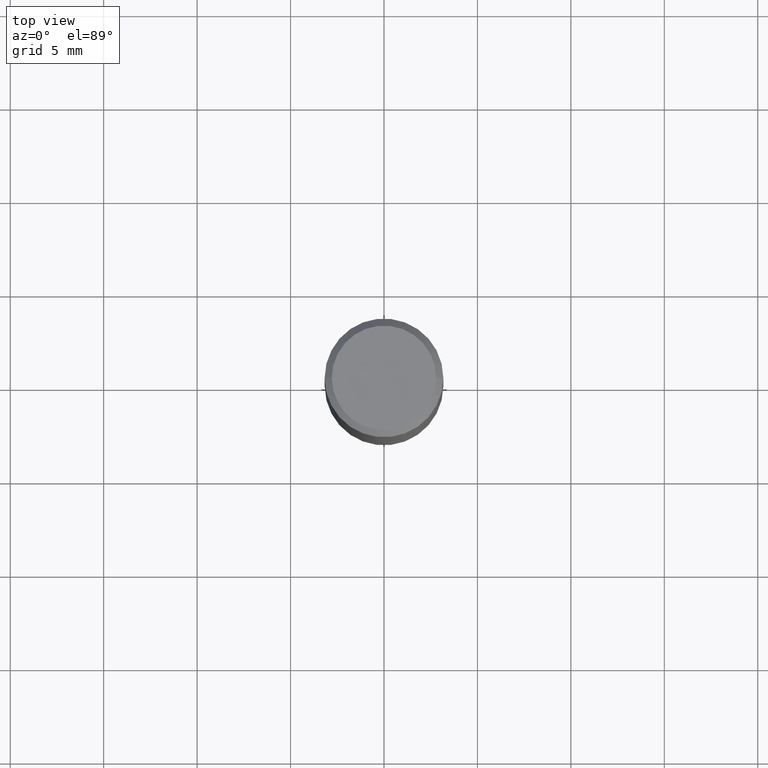
[diagram: clean part render]
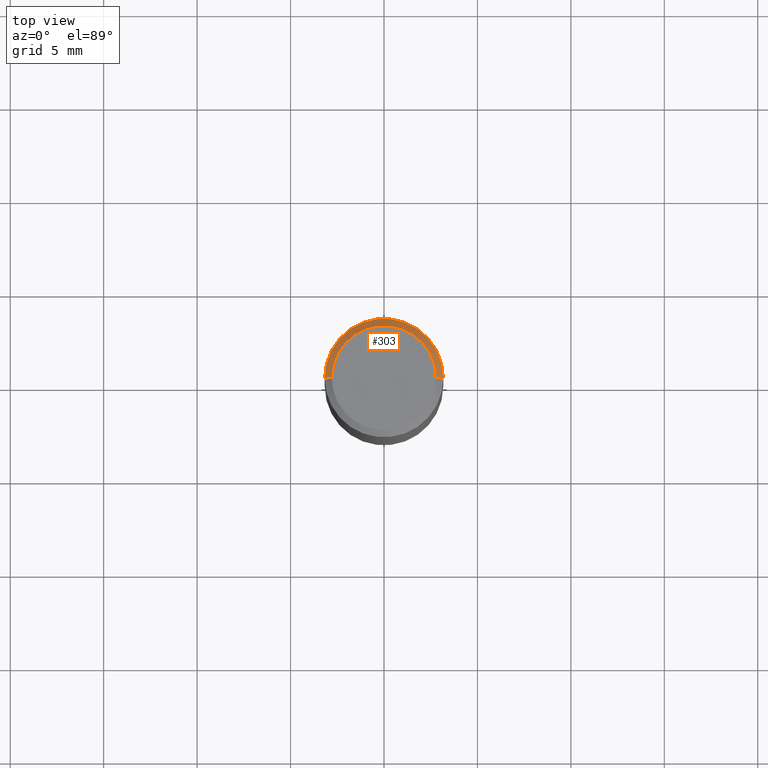
[diagram: same view with one face highlighted and labeled with its STEP entity id]
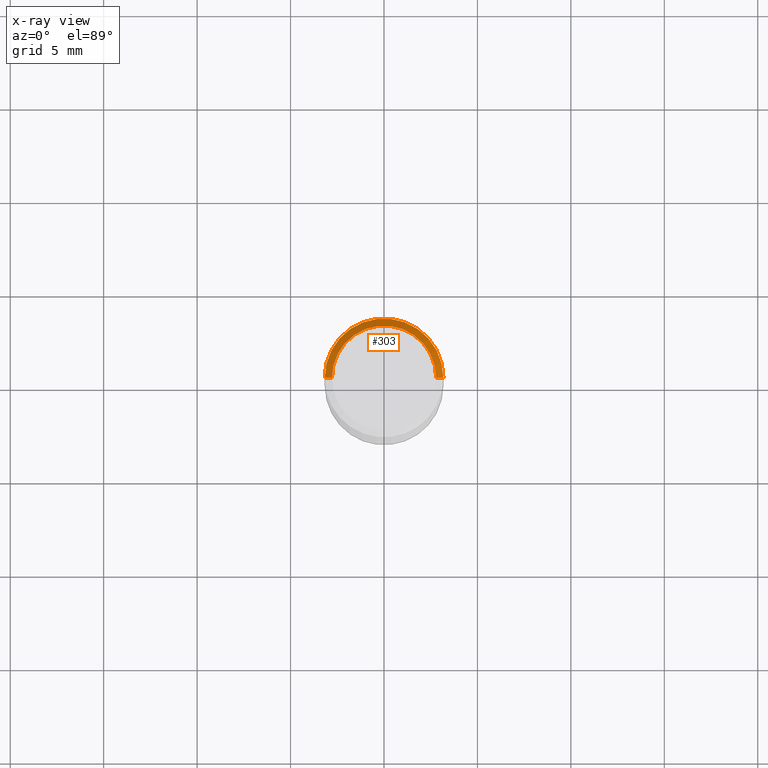
[diagram: x-ray of the same camera — body ghosted, the highlighted face saturated]
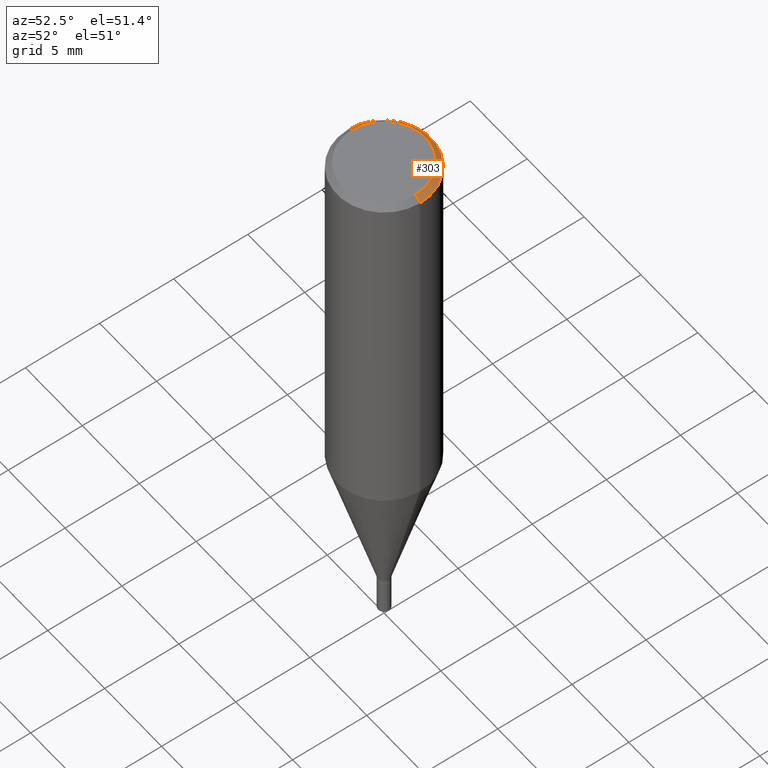
[diagram: same view with one face highlighted and labeled with its STEP entity id]
A machine part, top view. The second image highlights one B-rep face of the part: STEP entity #303.
The next image is the same camera in x-ray: the body ghosted, the highlighted face saturated — about 0% of this face is hidden behind the body in this view.
A second angle (auxiliary view) of the same face is appended — the face is thin or edge-on in the first view.
In plain terms, the highlighted conical surface has half-angle 45 deg.
Its self-contained STEP definition (entity closure, byte-faithful):
#22 = CONICAL_SURFACE ( 'NONE', #79, 0.1250000000000000000, 0.7853981633974442822 ) ;
#24 = DIRECTION ( 'NONE',  ( 1.000000000000000000, -6.982962677686266711E-15, 4.880309236314112093E-29 ) ) ;
#25 = CARTESIAN_POINT ( 'NONE',  ( 3.668203209277705088E-31, -5.237222008264718399E-17, -0.01499999999999999944 ) ) ;
#27 = CARTESIAN_POINT ( 'NONE',  ( 3.668203209277705088E-31, -5.237222008264718399E-17, -0.01499999999999999944 ) ) ;
#28 = EDGE_CURVE ( 'NONE', #446, #207, #161, .T. ) ;
#40 = ORIENTED_EDGE ( 'NONE', *, *, #416, .F. ) ;
#42 = AXIS2_PLACEMENT_3D ( 'NONE', #54, #326, #24 ) ;
#54 = CARTESIAN_POINT ( 'NONE',  ( -2.818101529822314113E-45, 4.023502110292317032E-31, 1.152376805091402685E-16 ) ) ;
#56 = EDGE_LOOP ( 'NONE', ( #428, #130, #165, #40 ) ) ;
#79 = AXIS2_PLACEMENT_3D ( 'NONE', #25, #463, #290 ) ;
#91 = CARTESIAN_POINT ( 'NONE',  ( 0.1250000000000000000, -9.099344698040885245E-16, -0.01499999999999999944 ) ) ;
#99 = DIRECTION ( 'NONE',  ( -0.7071067811865446862, 2.468850131082227084E-15, -0.7071067811865503483 ) ) ;
#130 = ORIENTED_EDGE ( 'NONE', *, *, #28, .T. ) ;
#137 = DIRECTION ( 'NONE',  ( -2.445468806185136597E-29, 3.491481338843145583E-15, 1.000000000000000000 ) ) ;
#145 = VECTOR ( 'NONE', #311, 39.37007874015748143 ) ;
#161 = LINE ( 'NONE', #91, #145 ) ;
#165 = ORIENTED_EDGE ( 'NONE', *, *, #323, .T. ) ;
#176 = VERTEX_POINT ( 'NONE', #220 ) ;
#182 = CARTESIAN_POINT ( 'NONE',  ( 0.1250000000000000000, -9.252425547934304180E-16, -0.01499999999999999944 ) ) ;
#207 = VERTEX_POINT ( 'NONE', #182 ) ;
#213 = CARTESIAN_POINT ( 'NONE',  ( -0.1250000000000000000, 8.204981146281362596E-16, -0.01499999999999999944 ) ) ;
#220 = CARTESIAN_POINT ( 'NONE',  ( -0.1100000000000000006, 7.943120045868129172E-16, 1.152376805091348205E-16 ) ) ;
#252 = CARTESIAN_POINT ( 'NONE',  ( 0.1100000000000000006, -8.322946247794783877E-16, 1.152376805091458645E-16 ) ) ;
#264 = VECTOR ( 'NONE', #99, 39.37007874015748143 ) ;
#284 = DIRECTION ( 'NONE',  ( 1.000000000000000000, -6.982962677686266711E-15, 0.000000000000000000 ) ) ;
#290 = DIRECTION ( 'NONE',  ( -1.000000000000000000, 6.982962677686266711E-15, 0.000000000000000000 ) ) ;
#303 = ADVANCED_FACE ( 'NONE', ( #360 ), #22, .T. ) ;
#310 = VERTEX_POINT ( 'NONE', #435 ) ;
#311 = DIRECTION ( 'NONE',  ( 0.7071067811865446862, -7.319954787623245001E-15, -0.7071067811865503483 ) ) ;
#318 = CIRCLE ( 'NONE', #412, 0.1250000000000000000 ) ;
#323 = EDGE_CURVE ( 'NONE', #207, #310, #318, .T. ) ;
#326 = DIRECTION ( 'NONE',  ( -2.445468806185136597E-29, 3.491481338843145583E-15, 1.000000000000000000 ) ) ;
#360 = FACE_OUTER_BOUND ( 'NONE', #56, .T. ) ;
#376 = CIRCLE ( 'NONE', #42, 0.1100000000000000006 ) ;
#412 = AXIS2_PLACEMENT_3D ( 'NONE', #27, #137, #284 ) ;
#416 = EDGE_CURVE ( 'NONE', #176, #310, #425, .T. ) ;
#425 = LINE ( 'NONE', #213, #264 ) ;
#428 = ORIENTED_EDGE ( 'NONE', *, *, #448, .F. ) ;
#435 = CARTESIAN_POINT ( 'NONE',  ( -0.1250000000000000000, -8.622995643155203899E-16, -0.01499999999999999944 ) ) ;
#446 = VERTEX_POINT ( 'NONE', #252 ) ;
#448 = EDGE_CURVE ( 'NONE', #446, #176, #376, .T. ) ;
#463 = DIRECTION ( 'NONE',  ( 2.445468806185136597E-29, -3.491481338843145583E-15, -1.000000000000000000 ) ) ;